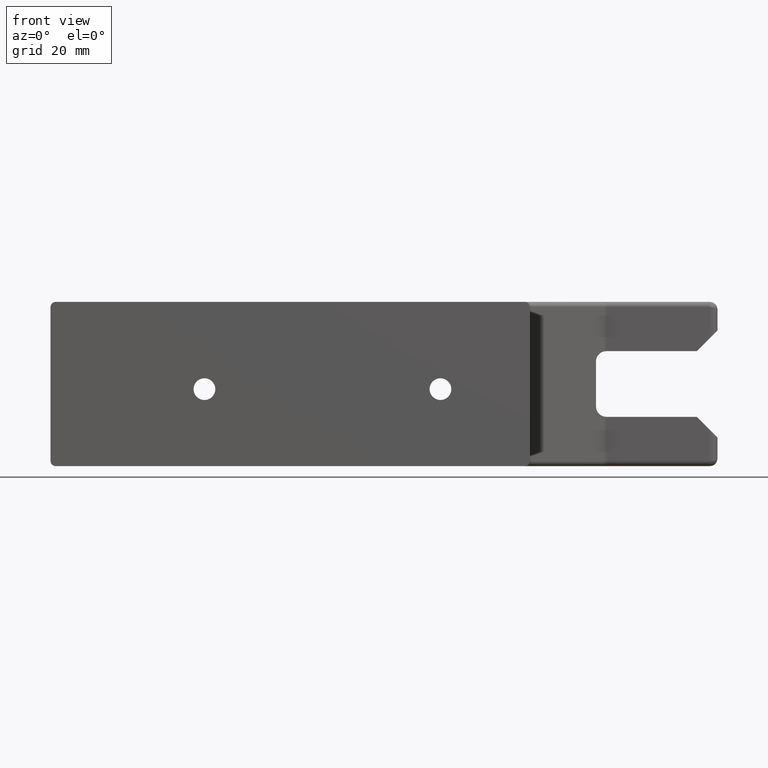
[diagram: clean part render]
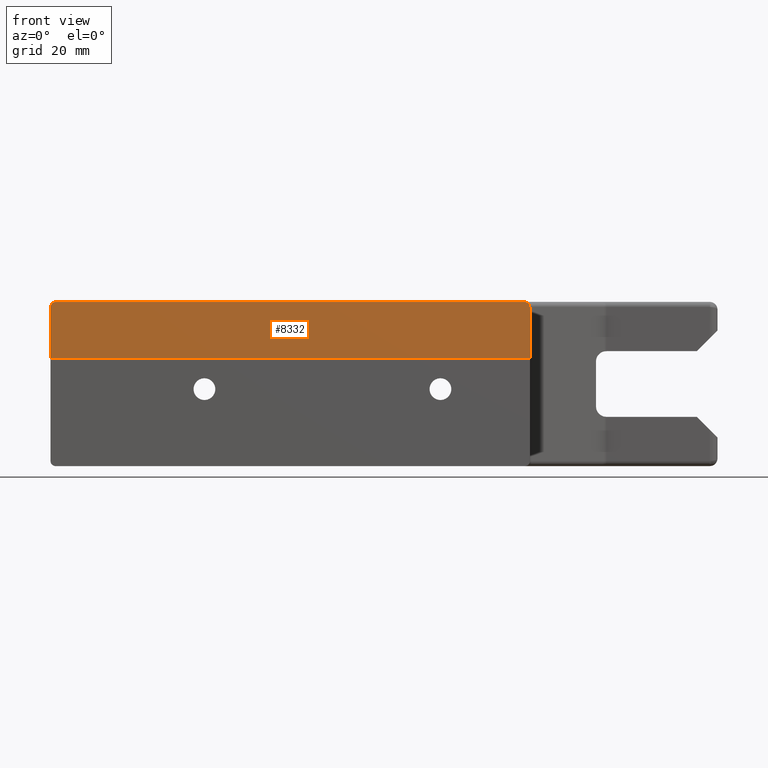
[diagram: same view with one face highlighted and labeled with its STEP entity id]
A machine part, front view. The second image highlights one B-rep face of the part: STEP entity #8332.
In plain terms, the highlighted planar face has unit normal (-0, 1, 0).
Its self-contained STEP definition (entity closure, byte-faithful):
#98 = VECTOR ( 'NONE', #3875, 39.37007874015748100 ) ;
#266 = CARTESIAN_POINT ( 'NONE',  ( 2.857500000000000400, 1.061309532311074900E-015, 1.000000000000000000 ) ) ;
#503 = CARTESIAN_POINT ( 'NONE',  ( 2.857499999999999900, 1.061309532311074900E-015, 0.9375000000000000000 ) ) ;
#717 = ORIENTED_EDGE ( 'NONE', *, *, #1566, .F. ) ;
#859 = DIRECTION ( 'NONE',  ( -1.000000000000000000, -1.836970198721029400E-016, 0.0000000000000000000 ) ) ;
#1069 = CIRCLE ( 'NONE', #6454, 0.06250000000000022200 ) ;
#1147 = VERTEX_POINT ( 'NONE', #4158 ) ;
#1272 = DIRECTION ( 'NONE',  ( -1.000000000000000000, -1.836970198721027700E-016, 0.0000000000000000000 ) ) ;
#1324 = CARTESIAN_POINT ( 'NONE',  ( 2.919999999999999900, 1.072790596053081100E-015, 0.3125000000000000000 ) ) ;
#1414 = CARTESIAN_POINT ( 'NONE',  ( 2.919999999999999900, 1.072790596053081100E-015, 1.000000000000000000 ) ) ;
#1566 = EDGE_CURVE ( 'NONE', #1147, #4206, #6517, .T. ) ;
#2198 = VECTOR ( 'NONE', #7746, 39.37007874015748100 ) ;
#2388 = PLANE ( 'NONE',  #4689 ) ;
#2543 = ORIENTED_EDGE ( 'NONE', *, *, #7639, .T. ) ;
#2651 = FACE_OUTER_BOUND ( 'NONE', #9404, .T. ) ;
#3617 = LINE ( 'NONE', #1414, #9305 ) ;
#3830 = CARTESIAN_POINT ( 'NONE',  ( 2.919999999999999900, 1.072790596053081100E-015, 0.9375000000000000000 ) ) ;
#3875 = DIRECTION ( 'NONE',  ( -0.0000000000000000000, -0.0000000000000000000, -1.000000000000000000 ) ) ;
#3934 = CARTESIAN_POINT ( 'NONE',  ( -2.919999999999999900, 0.0000000000000000000, 0.3125000000000000000 ) ) ;
#3947 = EDGE_CURVE ( 'NONE', #9004, #4086, #6808, .T. ) ;
#3954 = EDGE_CURVE ( 'NONE', #4086, #5562, #6078, .T. ) ;
#3998 = DIRECTION ( 'NONE',  ( 1.836970198721029400E-016, -1.000000000000000000, -0.0000000000000000000 ) ) ;
#4086 = VERTEX_POINT ( 'NONE', #3934 ) ;
#4158 = CARTESIAN_POINT ( 'NONE',  ( -2.857500000000000400, 1.148106374200637400E-017, 1.000000000000000000 ) ) ;
#4190 = ORIENTED_EDGE ( 'NONE', *, *, #8952, .F. ) ;
#4206 = VERTEX_POINT ( 'NONE', #266 ) ;
#4226 = VECTOR ( 'NONE', #6335, 39.37007874015748100 ) ;
#4689 = AXIS2_PLACEMENT_3D ( 'NONE', #4738, #5495, #859 ) ;
#4738 = CARTESIAN_POINT ( 'NONE',  ( -2.919999999999999900, 0.0000000000000000000, 1.000000000000000000 ) ) ;
#4773 = EDGE_CURVE ( 'NONE', #7250, #4206, #8699, .T. ) ;
#5495 = DIRECTION ( 'NONE',  ( -1.836970198721029400E-016, 1.000000000000000000, 0.0000000000000000000 ) ) ;
#5562 = VERTEX_POINT ( 'NONE', #1324 ) ;
#5931 = DIRECTION ( 'NONE',  ( 1.836970198721029400E-016, -1.000000000000000000, -0.0000000000000000000 ) ) ;
#6076 = CARTESIAN_POINT ( 'NONE',  ( -2.919999999999999900, 0.0000000000000000000, 1.000000000000000000 ) ) ;
#6078 = LINE ( 'NONE', #9282, #2198 ) ;
#6307 = ORIENTED_EDGE ( 'NONE', *, *, #3947, .T. ) ;
#6335 = DIRECTION ( 'NONE',  ( 1.000000000000000000, 1.836970198721029400E-016, 0.0000000000000000000 ) ) ;
#6454 = AXIS2_PLACEMENT_3D ( 'NONE', #8639, #3998, #9400 ) ;
#6517 = LINE ( 'NONE', #7043, #4226 ) ;
#6808 = LINE ( 'NONE', #6076, #98 ) ;
#7043 = CARTESIAN_POINT ( 'NONE',  ( -2.919999999999999900, 0.0000000000000000000, 1.000000000000000000 ) ) ;
#7250 = VERTEX_POINT ( 'NONE', #3830 ) ;
#7639 = EDGE_CURVE ( 'NONE', #1147, #9004, #1069, .T. ) ;
#7746 = DIRECTION ( 'NONE',  ( 1.000000000000000000, 1.836970198721029400E-016, 0.0000000000000000000 ) ) ;
#7934 = ORIENTED_EDGE ( 'NONE', *, *, #3954, .T. ) ;
#8332 = ADVANCED_FACE ( 'NONE', ( #2651 ), #2388, .F. ) ;
#8462 = CARTESIAN_POINT ( 'NONE',  ( -2.919999999999999900, 0.0000000000000000000, 0.9375000000000000000 ) ) ;
#8639 = CARTESIAN_POINT ( 'NONE',  ( -2.857500000000000400, 1.148106374200634200E-017, 0.9375000000000000000 ) ) ;
#8699 = CIRCLE ( 'NONE', #8959, 0.06250000000000022200 ) ;
#8952 = EDGE_CURVE ( 'NONE', #7250, #5562, #3617, .T. ) ;
#8959 = AXIS2_PLACEMENT_3D ( 'NONE', #503, #5931, #1272 ) ;
#9004 = VERTEX_POINT ( 'NONE', #8462 ) ;
#9103 = DIRECTION ( 'NONE',  ( -0.0000000000000000000, -0.0000000000000000000, -1.000000000000000000 ) ) ;
#9169 = ORIENTED_EDGE ( 'NONE', *, *, #4773, .T. ) ;
#9282 = CARTESIAN_POINT ( 'NONE',  ( -2.919999999999999900, 0.0000000000000000000, 0.3125000000000000000 ) ) ;
#9305 = VECTOR ( 'NONE', #9103, 39.37007874015748100 ) ;
#9400 = DIRECTION ( 'NONE',  ( -1.000000000000000000, -1.836970198721023000E-016, 0.0000000000000000000 ) ) ;
#9404 = EDGE_LOOP ( 'NONE', ( #6307, #7934, #4190, #9169, #717, #2543 ) ) ;